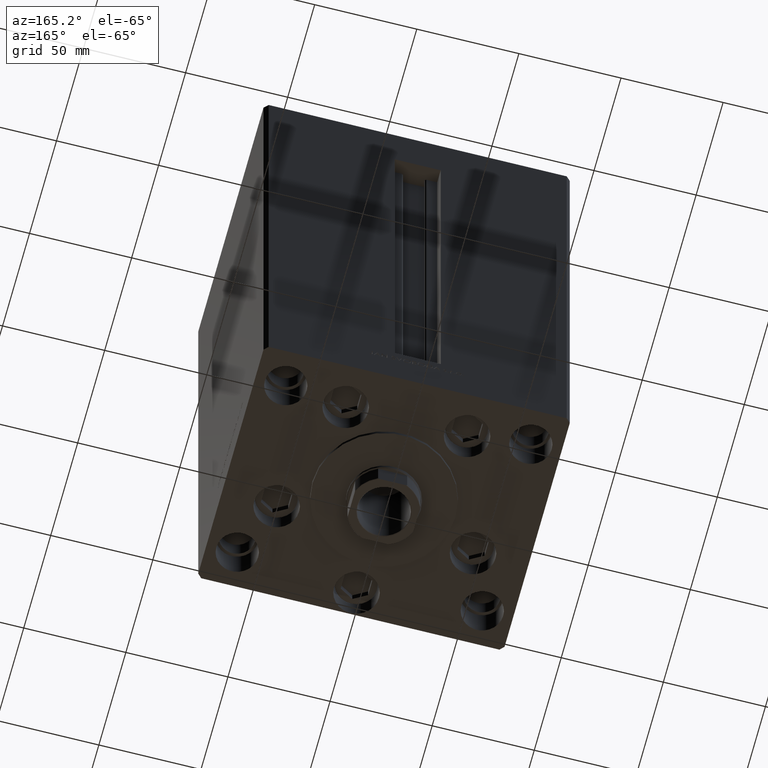
[diagram: clean part render]
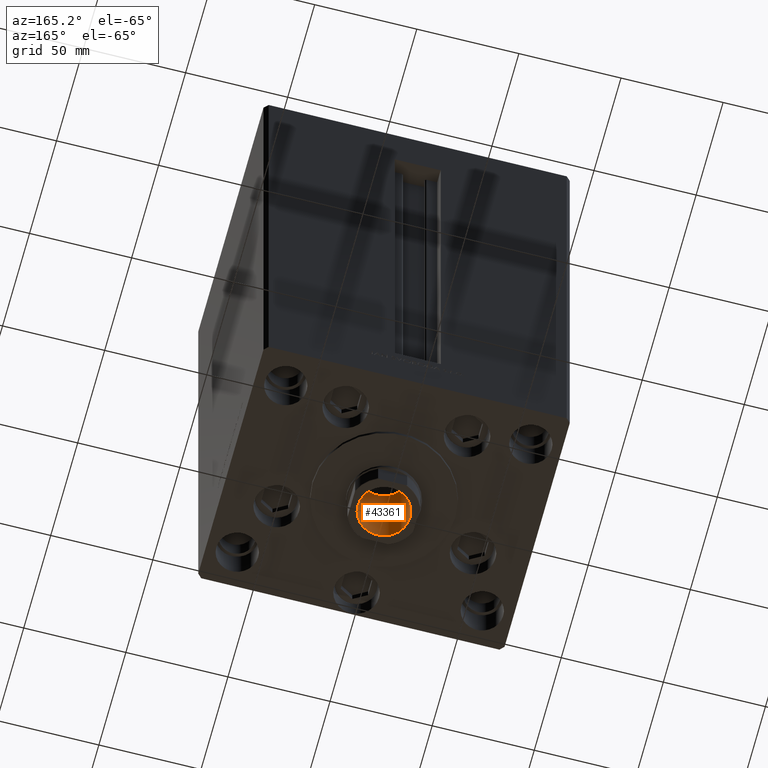
[diagram: same view with one face highlighted and labeled with its STEP entity id]
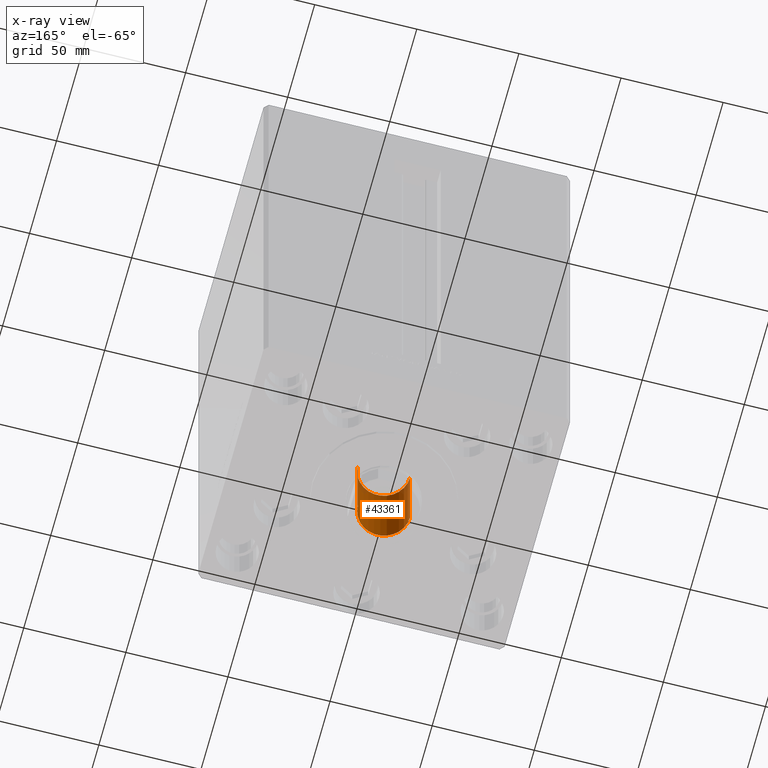
[diagram: x-ray of the same camera — body ghosted, the highlighted face saturated]
A machine part, auxiliary view. The second image highlights one B-rep face of the part: STEP entity #43361.
The next image is the same camera in x-ray: the body ghosted, the highlighted face saturated — about 5% of this face is hidden behind the body in this view.
In plain terms, the highlighted cylindrical surface (edge-blend (fillet) strip) has radius 12.75 mm, axis along (0, 0, -1).
Its self-contained STEP definition (entity closure, byte-faithful):
#4 = VECTOR ( 'NONE', #39793, 1000.000000000000000 ) ;
#703 = AXIS2_PLACEMENT_3D ( 'NONE', #29066, #36722, #36245 ) ;
#1964 = CARTESIAN_POINT ( 'NONE',  ( -12.74999999999999467, 1.561424668912874519E-15, 252.5000000000000000 ) ) ;
#2342 = EDGE_CURVE ( 'NONE', #48709, #24539, #28226, .T. ) ;
#3721 = AXIS2_PLACEMENT_3D ( 'NONE', #29444, #48237, #22008 ) ;
#4086 = ORIENTED_EDGE ( 'NONE', *, *, #36002, .T. ) ;
#9524 = CARTESIAN_POINT ( 'NONE',  ( -12.74999999999999467, 1.561424668912874519E-15, 252.1999999999999886 ) ) ;
#11561 = EDGE_CURVE ( 'NONE', #21025, #41773, #21284, .T. ) ;
#12457 = AXIS2_PLACEMENT_3D ( 'NONE', #26710, #33396, #31389 ) ;
#12805 = CARTESIAN_POINT ( 'NONE',  ( 12.74999999999999112, 0.000000000000000000, 207.5000000000000284 ) ) ;
#13320 = CARTESIAN_POINT ( 'NONE',  ( 12.74999999999999467, 0.000000000000000000, 252.5000000000000000 ) ) ;
#14233 = EDGE_CURVE ( 'NONE', #41773, #24539, #24451, .T. ) ;
#20794 = LINE ( 'NONE', #1964, #41449 ) ;
#21025 = VERTEX_POINT ( 'NONE', #24168 ) ;
#21284 = CIRCLE ( 'NONE', #703, 12.74999999999999112 ) ;
#22008 = DIRECTION ( 'NONE',  ( 1.000000000000000000, 0.000000000000000000, 0.000000000000000000 ) ) ;
#24168 = CARTESIAN_POINT ( 'NONE',  ( -12.74999999999999112, 1.561424668912874125E-15, 207.5000000000000284 ) ) ;
#24451 = LINE ( 'NONE', #13320, #4 ) ;
#24539 = VERTEX_POINT ( 'NONE', #30511 ) ;
#26710 = CARTESIAN_POINT ( 'NONE',  ( 0.000000000000000000, 0.000000000000000000, 252.5000000000000000 ) ) ;
#28226 = CIRCLE ( 'NONE', #3721, 12.74999999999999467 ) ;
#29066 = CARTESIAN_POINT ( 'NONE',  ( 0.000000000000000000, 0.000000000000000000, 207.5000000000000284 ) ) ;
#29444 = CARTESIAN_POINT ( 'NONE',  ( 0.000000000000000000, 0.000000000000000000, 252.1999999999999886 ) ) ;
#30423 = FACE_OUTER_BOUND ( 'NONE', #40624, .T. ) ;
#30511 = CARTESIAN_POINT ( 'NONE',  ( 12.74999999999999467, 0.000000000000000000, 252.1999999999999886 ) ) ;
#31019 = ORIENTED_EDGE ( 'NONE', *, *, #2342, .T. ) ;
#31389 = DIRECTION ( 'NONE',  ( 1.000000000000000000, 0.000000000000000000, 0.000000000000000000 ) ) ;
#33396 = DIRECTION ( 'NONE',  ( -0.000000000000000000, -0.000000000000000000, 1.000000000000000000 ) ) ;
#35640 = DIRECTION ( 'NONE',  ( -0.000000000000000000, -0.000000000000000000, 1.000000000000000000 ) ) ;
#36002 = EDGE_CURVE ( 'NONE', #21025, #48709, #20794, .T. ) ;
#36226 = ORIENTED_EDGE ( 'NONE', *, *, #11561, .F. ) ;
#36245 = DIRECTION ( 'NONE',  ( 1.000000000000000000, 0.000000000000000000, 0.000000000000000000 ) ) ;
#36722 = DIRECTION ( 'NONE',  ( -0.000000000000000000, -0.000000000000000000, 1.000000000000000000 ) ) ;
#39793 = DIRECTION ( 'NONE',  ( -0.000000000000000000, -0.000000000000000000, 1.000000000000000000 ) ) ;
#40624 = EDGE_LOOP ( 'NONE', ( #36226, #4086, #31019, #48158 ) ) ;
#41449 = VECTOR ( 'NONE', #35640, 1000.000000000000000 ) ;
#41773 = VERTEX_POINT ( 'NONE', #12805 ) ;
#43361 = ADVANCED_FACE ( 'NONE', ( #30423 ), #45491, .F. ) ;
#45491 = CYLINDRICAL_SURFACE ( 'NONE', #12457, 12.74999999999999467 ) ;
#48158 = ORIENTED_EDGE ( 'NONE', *, *, #14233, .F. ) ;
#48237 = DIRECTION ( 'NONE',  ( 0.000000000000000000, 0.000000000000000000, 1.000000000000000000 ) ) ;
#48709 = VERTEX_POINT ( 'NONE', #9524 ) ;